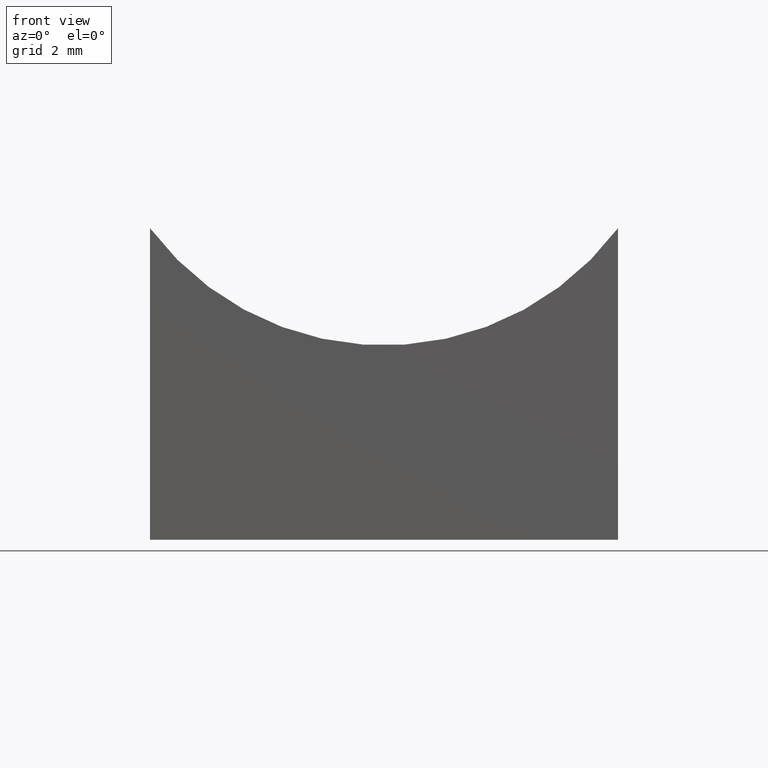
[diagram: clean part render]
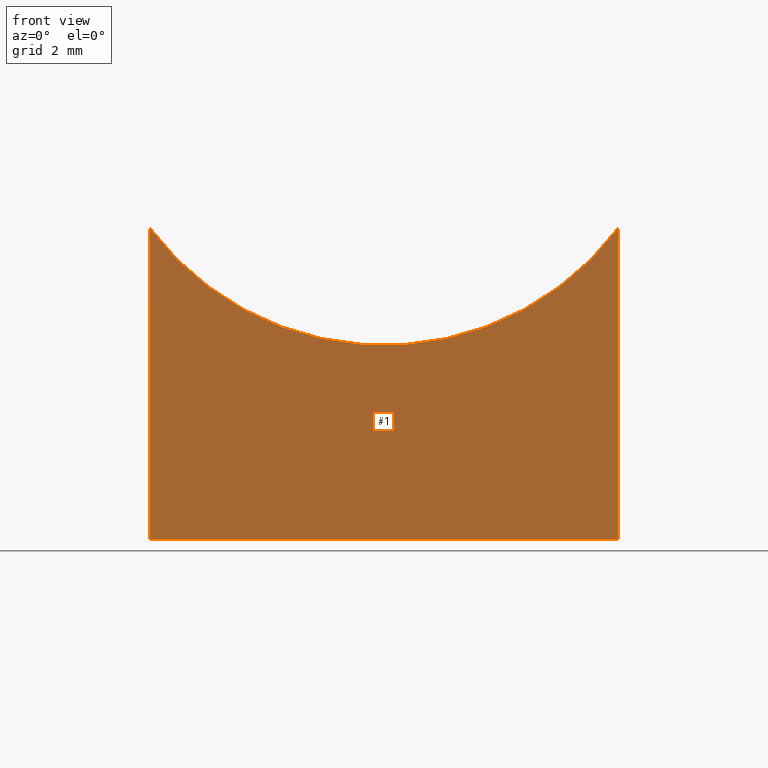
[diagram: same view with one face highlighted and labeled with its STEP entity id]
A machine part, front view. The second image highlights one B-rep face of the part: STEP entity #1.
In plain terms, the highlighted planar face has unit normal (0, 1, 0).
Its self-contained STEP definition (entity closure, byte-faithful):
#1 = ADVANCED_FACE ( 'NONE', ( #107 ), #11, .F. ) ;
#11 = PLANE ( 'NONE',  #232 ) ;
#14 = EDGE_CURVE ( 'NONE', #88, #109, #224, .T. ) ;
#18 = DIRECTION ( 'NONE',  ( 0.0000000000000000000, 1.000000000000000000, 0.0000000000000000000 ) ) ;
#21 = CARTESIAN_POINT ( 'NONE',  ( -6.250000000000000000, -6.250000000000000888, 10.00000000000000000 ) ) ;
#32 = CIRCLE ( 'NONE', #120, 7.806247497997999218 ) ;
#34 = VERTEX_POINT ( 'NONE', #177 ) ;
#71 = ORIENTED_EDGE ( 'NONE', *, *, #83, .T. ) ;
#73 = CARTESIAN_POINT ( 'NONE',  ( 6.250000000000000000, -6.250000000000000888, 8.322928266532569452 ) ) ;
#74 = DIRECTION ( 'NONE',  ( 0.0000000000000000000, 0.0000000000000000000, 1.000000000000000000 ) ) ;
#77 = CARTESIAN_POINT ( 'NONE',  ( 6.250000000000000000, -6.250000000000000888, 0.0000000000000000000 ) ) ;
#78 = CARTESIAN_POINT ( 'NONE',  ( 1.734723475976807094E-15, -6.250000000000000888, 13.00000000000000178 ) ) ;
#82 = ORIENTED_EDGE ( 'NONE', *, *, #14, .F. ) ;
#83 = EDGE_CURVE ( 'NONE', #88, #34, #32, .T. ) ;
#88 = VERTEX_POINT ( 'NONE', #73 ) ;
#91 = CARTESIAN_POINT ( 'NONE',  ( -6.250000000000000000, -6.250000000000000888, 10.00000000000000000 ) ) ;
#107 = FACE_OUTER_BOUND ( 'NONE', #158, .T. ) ;
#109 = VERTEX_POINT ( 'NONE', #77 ) ;
#110 = DIRECTION ( 'NONE',  ( 1.000000000000000000, 0.0000000000000000000, 0.0000000000000000000 ) ) ;
#114 = CARTESIAN_POINT ( 'NONE',  ( -6.250000000000000000, -6.250000000000000888, 0.0000000000000000000 ) ) ;
#120 = AXIS2_PLACEMENT_3D ( 'NONE', #78, #18, #74 ) ;
#132 = ORIENTED_EDGE ( 'NONE', *, *, #219, .T. ) ;
#133 = DIRECTION ( 'NONE',  ( 0.0000000000000000000, -0.0000000000000000000, 1.000000000000000000 ) ) ;
#140 = LINE ( 'NONE', #21, #251 ) ;
#143 = ORIENTED_EDGE ( 'NONE', *, *, #179, .T. ) ;
#158 = EDGE_LOOP ( 'NONE', ( #82, #71, #132, #143 ) ) ;
#165 = VERTEX_POINT ( 'NONE', #114 ) ;
#167 = CARTESIAN_POINT ( 'NONE',  ( 6.250000000000000000, -6.250000000000000888, 10.00000000000000000 ) ) ;
#171 = LINE ( 'NONE', #191, #221 ) ;
#177 = CARTESIAN_POINT ( 'NONE',  ( -6.250000000000000000, -6.250000000000000888, 8.322928266532574781 ) ) ;
#179 = EDGE_CURVE ( 'NONE', #165, #109, #171, .T. ) ;
#191 = CARTESIAN_POINT ( 'NONE',  ( -6.250000000000000000, -6.250000000000000888, 0.0000000000000000000 ) ) ;
#193 = DIRECTION ( 'NONE',  ( 0.0000000000000000000, 1.000000000000000000, 0.0000000000000000000 ) ) ;
#203 = DIRECTION ( 'NONE',  ( -0.0000000000000000000, -0.0000000000000000000, -1.000000000000000000 ) ) ;
#209 = VECTOR ( 'NONE', #203, 1000.000000000000000 ) ;
#216 = DIRECTION ( 'NONE',  ( -0.0000000000000000000, -0.0000000000000000000, -1.000000000000000000 ) ) ;
#219 = EDGE_CURVE ( 'NONE', #34, #165, #140, .T. ) ;
#221 = VECTOR ( 'NONE', #110, 1000.000000000000000 ) ;
#224 = LINE ( 'NONE', #167, #209 ) ;
#232 = AXIS2_PLACEMENT_3D ( 'NONE', #91, #193, #133 ) ;
#251 = VECTOR ( 'NONE', #216, 1000.000000000000000 ) ;